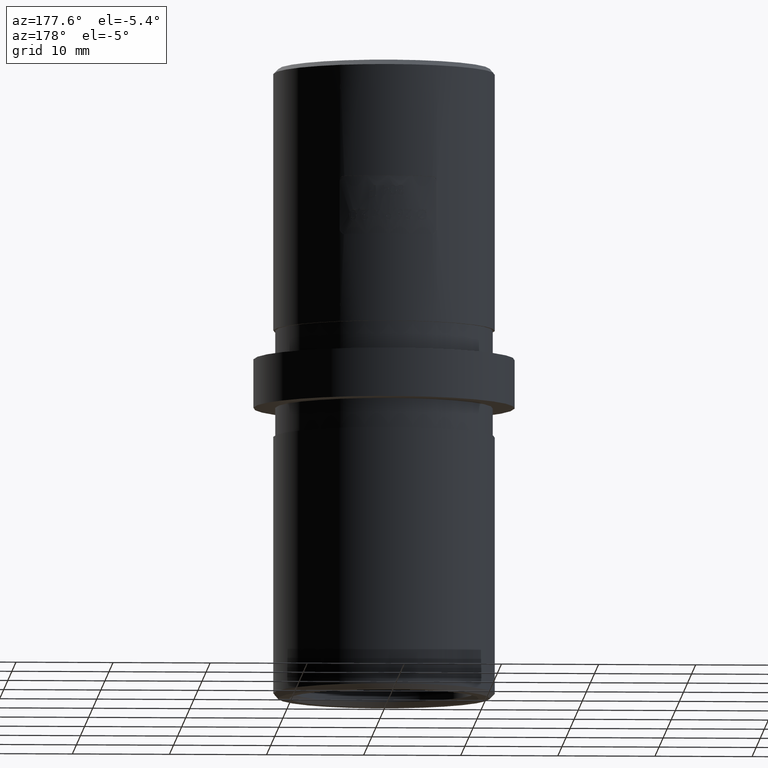
[diagram: clean part render]
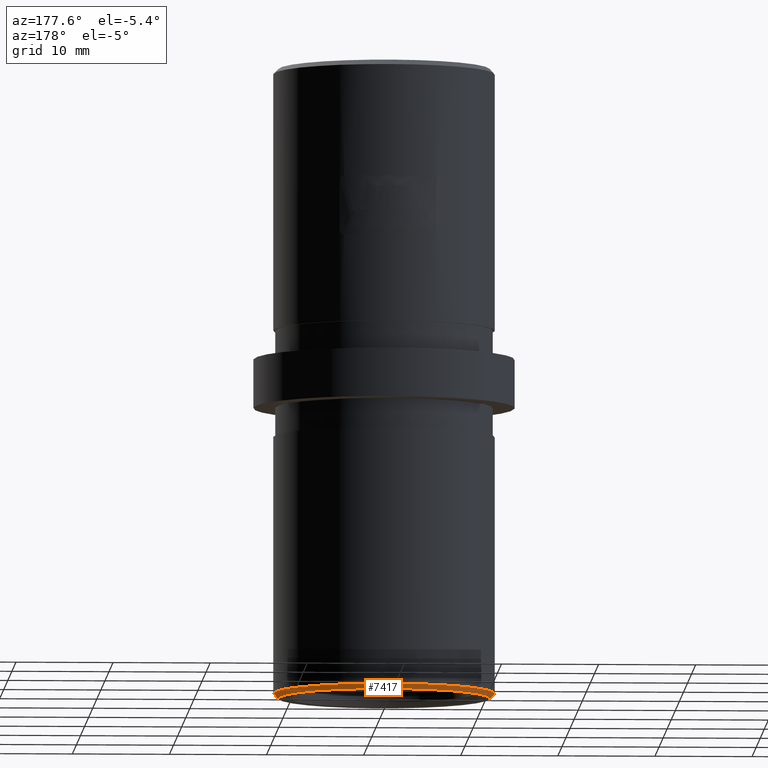
[diagram: same view with one face highlighted and labeled with its STEP entity id]
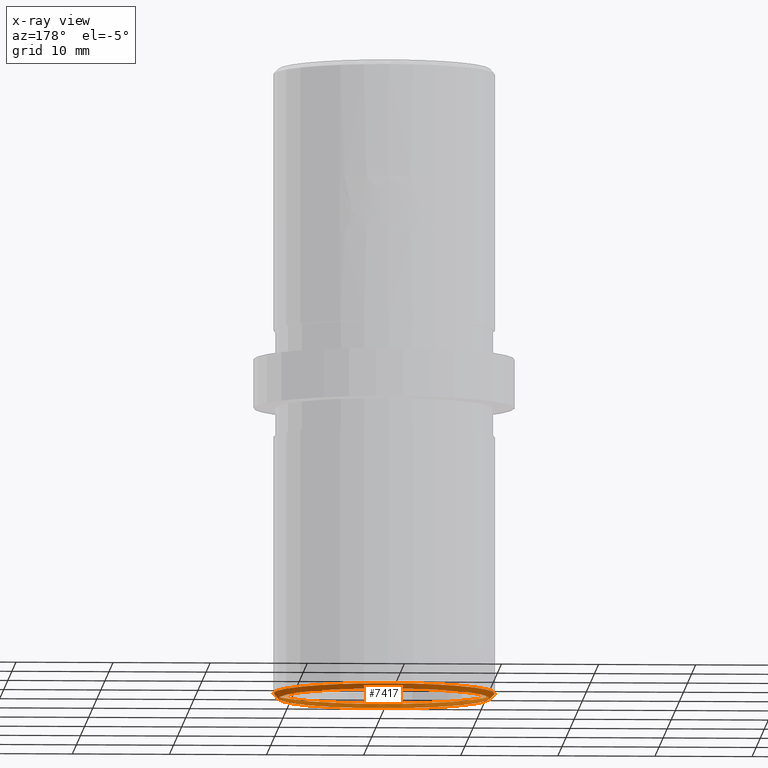
[diagram: x-ray of the same camera — body ghosted, the highlighted face saturated]
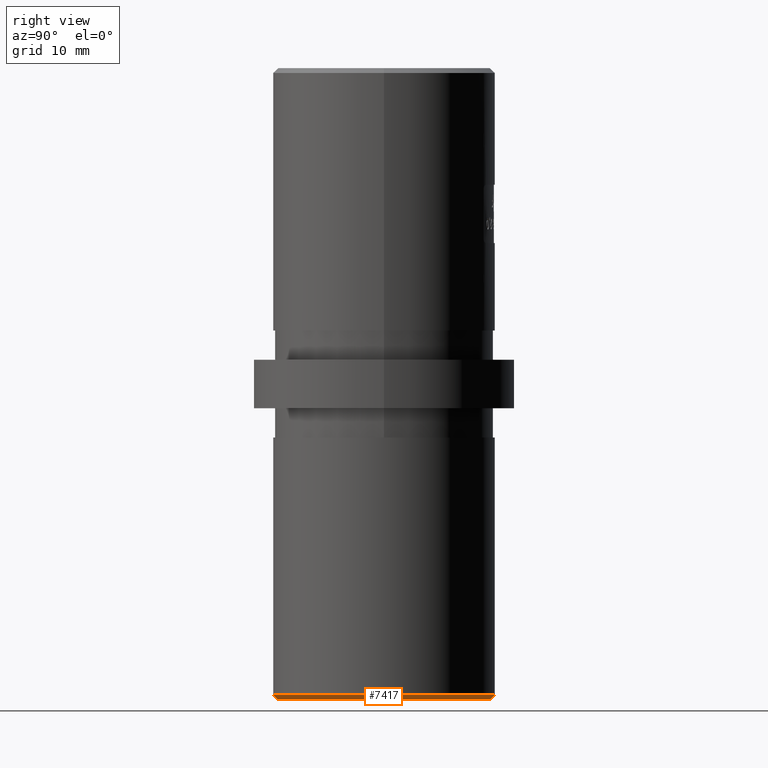
[diagram: same view with one face highlighted and labeled with its STEP entity id]
A machine part, auxiliary view. The second image highlights one B-rep face of the part: STEP entity #7417.
The next image is the same camera in x-ray: the body ghosted, the highlighted face saturated — about 0% of this face is hidden behind the body in this view.
A second angle (right view) of the same face is appended — the face is thin or edge-on in the first view.
In plain terms, the highlighted conical surface has half-angle 45 deg.
Its self-contained STEP definition (entity closure, byte-faithful):
#833 = ORIENTED_EDGE ( 'NONE', *, *, #18162, .F. ) ;
#1540 = DIRECTION ( 'NONE',  ( -1.000000000000000000, 0.000000000000000000, 0.000000000000000000 ) ) ;
#1996 = CARTESIAN_POINT ( 'NONE',  ( -11.40000000000000036, 0.000000000000000000, -31.99999999999998579 ) ) ;
#3686 = CONICAL_SURFACE ( 'NONE', #8765, 11.40000000000000036, 0.7853981633974500554 ) ;
#4200 = FACE_BOUND ( 'NONE', #20270, .T. ) ;
#4919 = VERTEX_POINT ( 'NONE', #1996 ) ;
#5426 = ORIENTED_EDGE ( 'NONE', *, *, #8276, .F. ) ;
#6293 = DIRECTION ( 'NONE',  ( 1.000000000000000000, 0.000000000000000000, 0.000000000000000000 ) ) ;
#7417 = ADVANCED_FACE ( 'NONE', ( #4200, #13372 ), #3686, .T. ) ;
#8276 = EDGE_CURVE ( 'NONE', #4919, #4919, #12140, .T. ) ;
#8702 = CARTESIAN_POINT ( 'NONE',  ( -10.89999999999998437, 0.000000000000000000, -32.50000000000000000 ) ) ;
#8765 = AXIS2_PLACEMENT_3D ( 'NONE', #10876, #14022, #6293 ) ;
#10876 = CARTESIAN_POINT ( 'NONE',  ( 0.000000000000000000, 0.000000000000000000, -31.99999999999998579 ) ) ;
#10897 = DIRECTION ( 'NONE',  ( -0.000000000000000000, -0.000000000000000000, 1.000000000000000000 ) ) ;
#11670 = CARTESIAN_POINT ( 'NONE',  ( 0.000000000000000000, 0.000000000000000000, -32.50000000000000000 ) ) ;
#12140 = CIRCLE ( 'NONE', #19973, 11.40000000000000036 ) ;
#12855 = VERTEX_POINT ( 'NONE', #8702 ) ;
#13264 = EDGE_LOOP ( 'NONE', ( #5426 ) ) ;
#13372 = FACE_OUTER_BOUND ( 'NONE', #13264, .T. ) ;
#14022 = DIRECTION ( 'NONE',  ( -0.000000000000000000, -0.000000000000000000, 1.000000000000000000 ) ) ;
#15849 = CIRCLE ( 'NONE', #20254, 10.89999999999998437 ) ;
#16250 = DIRECTION ( 'NONE',  ( 0.000000000000000000, 0.000000000000000000, -1.000000000000000000 ) ) ;
#17677 = DIRECTION ( 'NONE',  ( -1.000000000000000000, 0.000000000000000000, 0.000000000000000000 ) ) ;
#18162 = EDGE_CURVE ( 'NONE', #12855, #12855, #15849, .T. ) ;
#18975 = CARTESIAN_POINT ( 'NONE',  ( 0.000000000000000000, 0.000000000000000000, -31.99999999999998579 ) ) ;
#19973 = AXIS2_PLACEMENT_3D ( 'NONE', #18975, #10897, #1540 ) ;
#20254 = AXIS2_PLACEMENT_3D ( 'NONE', #11670, #16250, #17677 ) ;
#20270 = EDGE_LOOP ( 'NONE', ( #833 ) ) ;